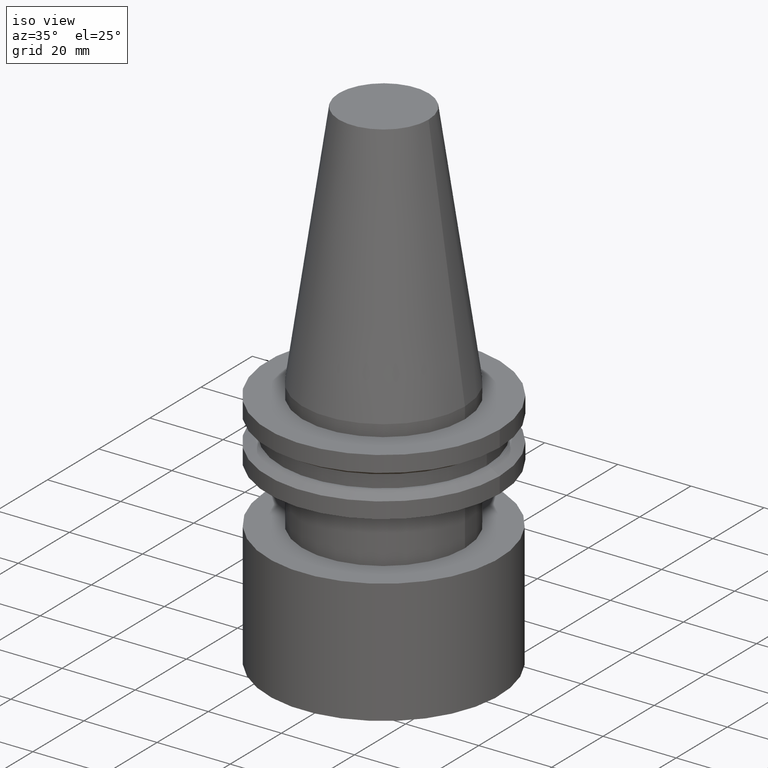
[diagram: clean part render]
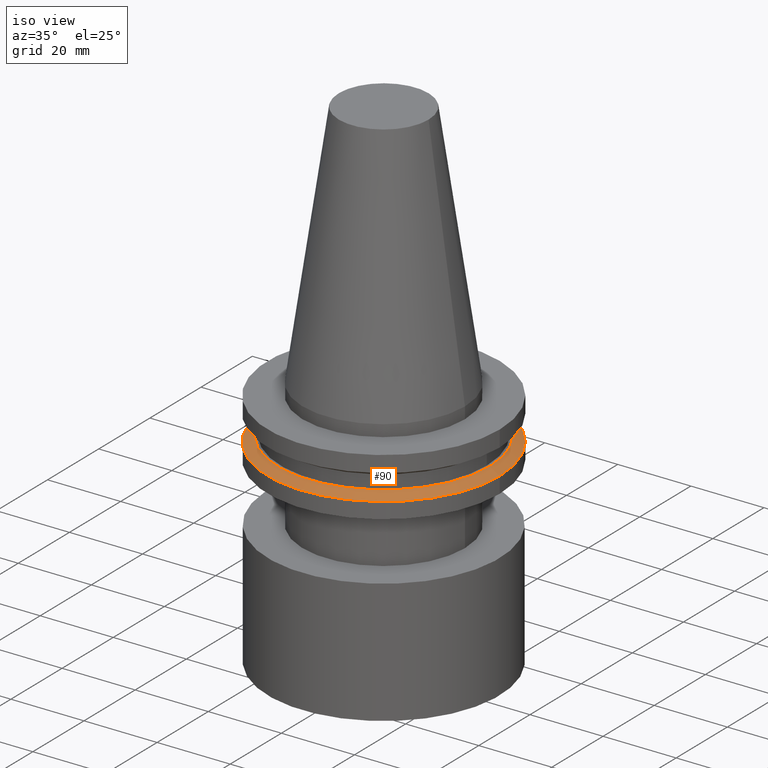
[diagram: same view with one face highlighted and labeled with its STEP entity id]
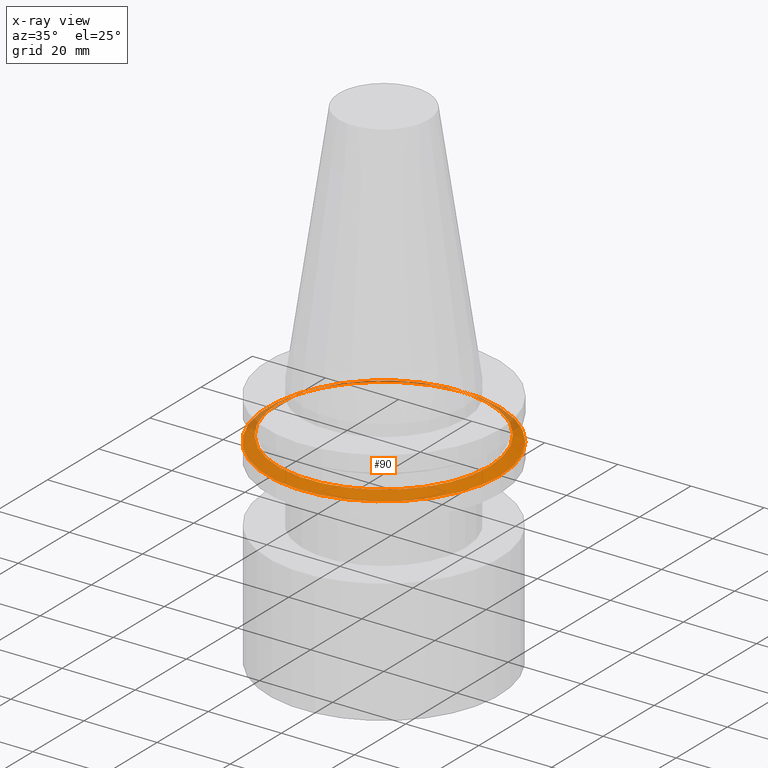
[diagram: x-ray of the same camera — body ghosted, the highlighted face saturated]
A machine part, iso view. The second image highlights one B-rep face of the part: STEP entity #90.
The next image is the same camera in x-ray: the body ghosted, the highlighted face saturated — about 12% of this face is hidden behind the body in this view.
In plain terms, the highlighted conical surface has half-angle 60 deg.
Its self-contained STEP definition (entity closure, byte-faithful):
#9 = AXIS2_PLACEMENT_3D ( 'NONE', #103, #349, #352 ) ;
#25 = EDGE_CURVE ( 'NONE', #129, #129, #264, .T. ) ;
#56 = CONICAL_SURFACE ( 'NONE', #9, 31.75000000000000000, 1.047197551196597853 ) ;
#89 = ORIENTED_EDGE ( 'NONE', *, *, #116, .T. ) ;
#90 = ADVANCED_FACE ( 'NONE', ( #207, #238 ), #56, .T. ) ;
#103 = CARTESIAN_POINT ( 'NONE',  ( 0.000000000000000000, 0.000000000000000000, -14.65472339340266572 ) ) ;
#114 = EDGE_LOOP ( 'NONE', ( #285 ) ) ;
#116 = EDGE_CURVE ( 'NONE', #322, #322, #390, .T. ) ;
#129 = VERTEX_POINT ( 'NONE', #208 ) ;
#153 = DIRECTION ( 'NONE',  ( 1.000000000000000000, 0.000000000000000000, 0.000000000000000000 ) ) ;
#188 = CARTESIAN_POINT ( 'NONE',  ( 0.000000000000000000, 0.000000000000000000, -13.05499999999999794 ) ) ;
#196 = DIRECTION ( 'NONE',  ( -0.000000000000000000, -0.000000000000000000, 1.000000000000000000 ) ) ;
#202 = CARTESIAN_POINT ( 'NONE',  ( 0.000000000000000000, 0.000000000000000000, -14.65472339340266572 ) ) ;
#207 = FACE_BOUND ( 'NONE', #114, .T. ) ;
#208 = CARTESIAN_POINT ( 'NONE',  ( 28.97919780457008088, 0.000000000000000000, -13.05499999999999794 ) ) ;
#222 = AXIS2_PLACEMENT_3D ( 'NONE', #202, #196, #347 ) ;
#238 = FACE_OUTER_BOUND ( 'NONE', #258, .T. ) ;
#243 = AXIS2_PLACEMENT_3D ( 'NONE', #188, #262, #153 ) ;
#258 = EDGE_LOOP ( 'NONE', ( #89 ) ) ;
#262 = DIRECTION ( 'NONE',  ( -0.000000000000000000, -0.000000000000000000, 1.000000000000000000 ) ) ;
#264 = CIRCLE ( 'NONE', #243, 28.97919780457008088 ) ;
#285 = ORIENTED_EDGE ( 'NONE', *, *, #25, .F. ) ;
#322 = VERTEX_POINT ( 'NONE', #381 ) ;
#347 = DIRECTION ( 'NONE',  ( 1.000000000000000000, 0.000000000000000000, 0.000000000000000000 ) ) ;
#349 = DIRECTION ( 'NONE',  ( 0.000000000000000000, 0.000000000000000000, -1.000000000000000000 ) ) ;
#352 = DIRECTION ( 'NONE',  ( -1.000000000000000000, 0.000000000000000000, 0.000000000000000000 ) ) ;
#381 = CARTESIAN_POINT ( 'NONE',  ( 31.75000000000000000, 0.000000000000000000, -14.65472339340266572 ) ) ;
#390 = CIRCLE ( 'NONE', #222, 31.75000000000000000 ) ;